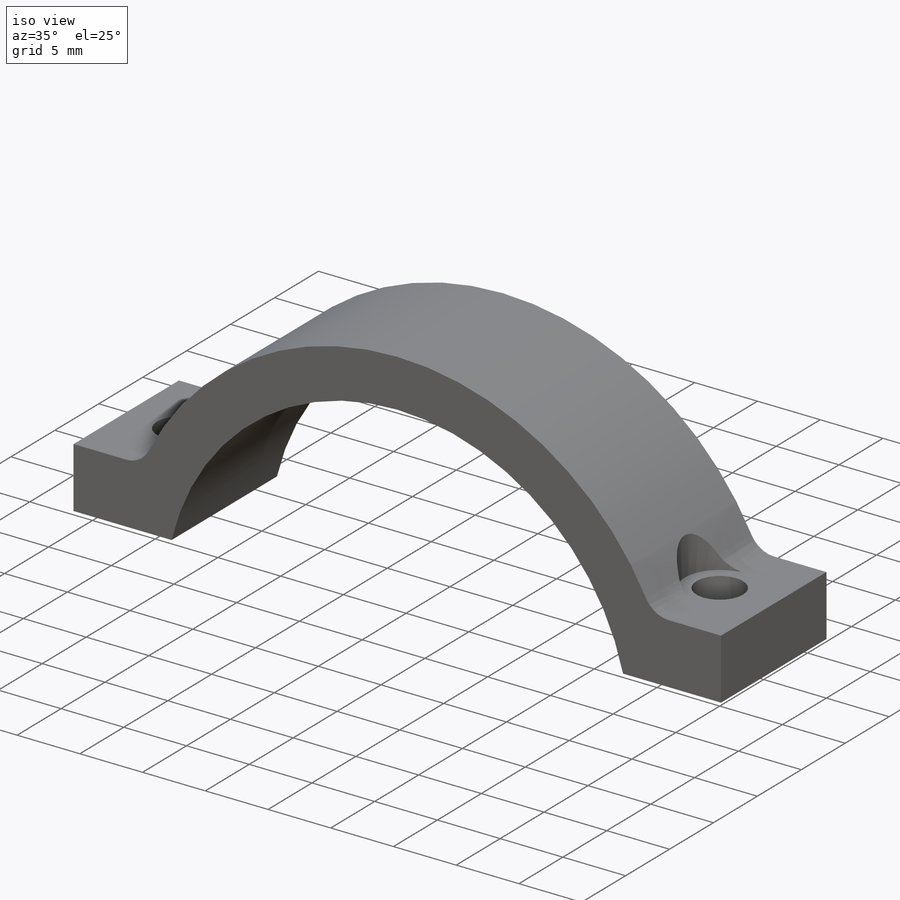
[diagram: iso view]
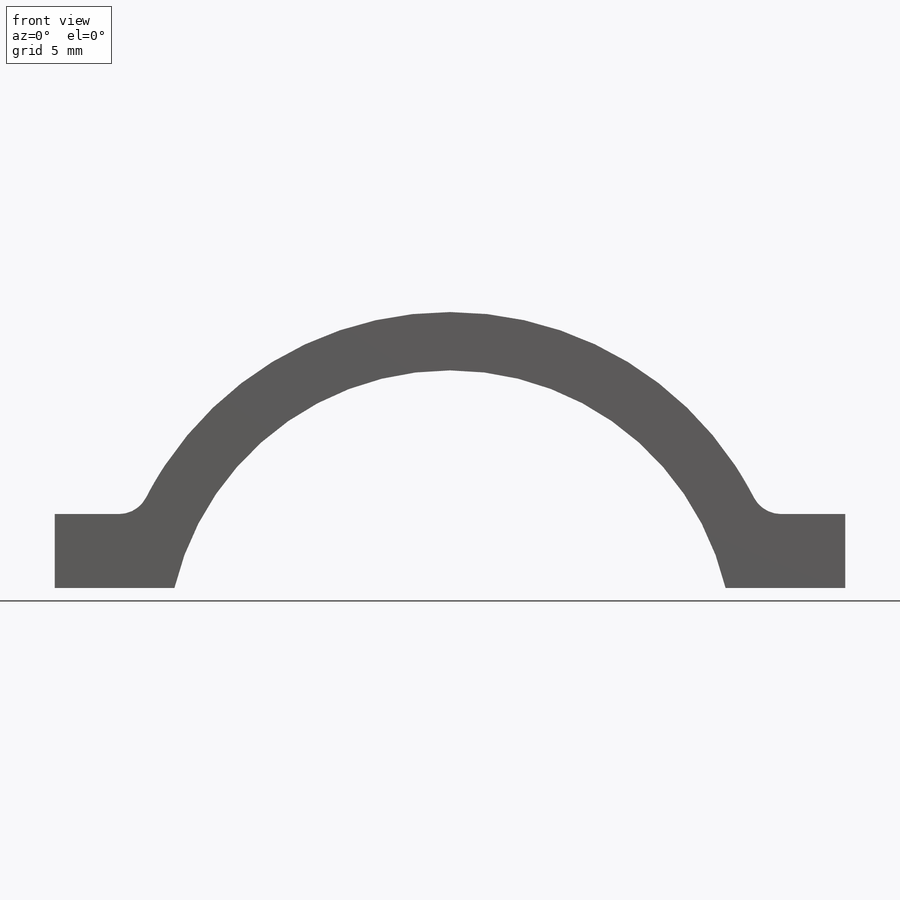
[diagram: front view]
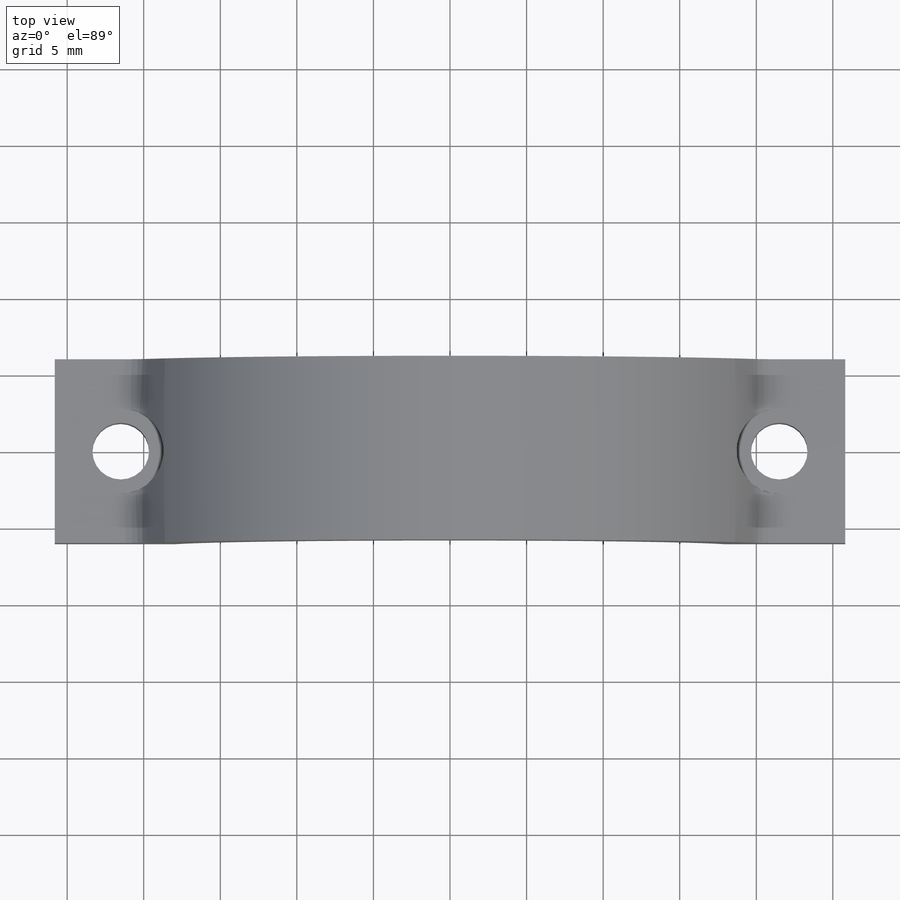
[diagram: top view]
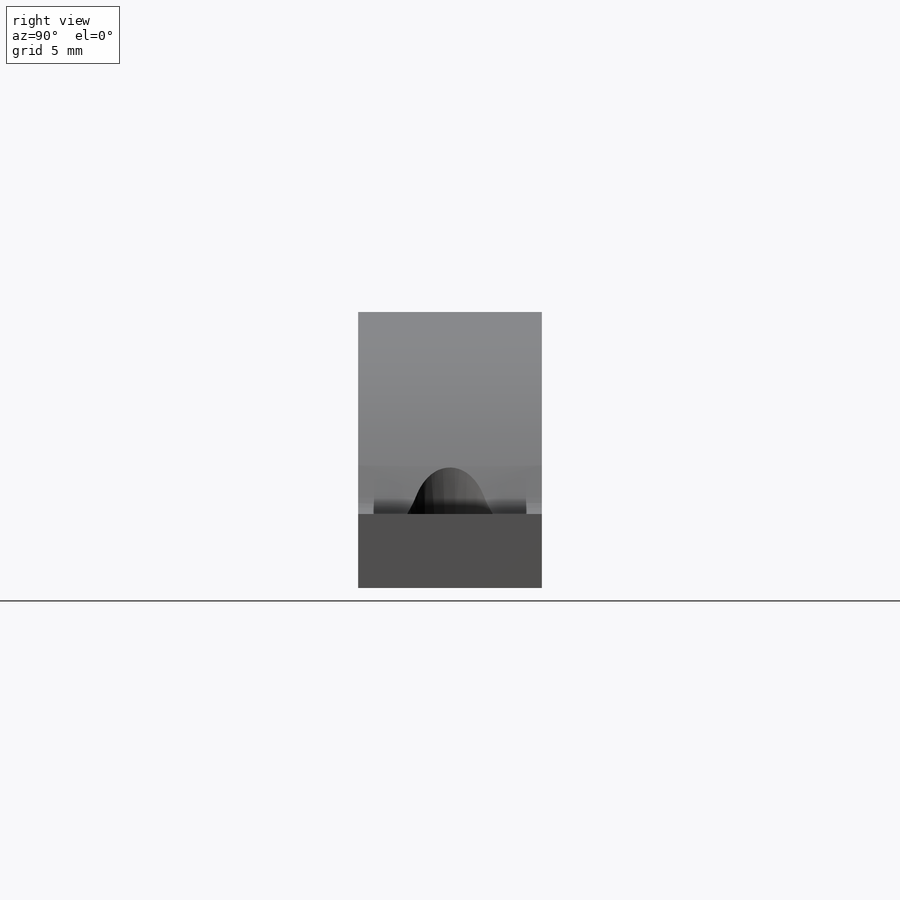
[diagram: right view]
SOLIDWORKS PART (.sldprt)
format: sldprt  version: not decoded by parser v0  size: 186,880 bytes
history: native  units: mm
features: sketch x3, cut_extrude x2, material x1, extrude x1, fillet x1 (+11 scaffold rows collapsed)
feature tree (19):
  scaffold x11  (default folders/planes/origin — collapsed)
  material  "2024 Alloy"
  sketch  "Sketch1"  dims[c1.D3=45.5852mm c1.D1=4.2926mm c1.D2=18.5mm c2.D3=3.81mm c2.D4=51.6128mm c2.D5=4.826mm c2.D2=18.5mm]
  extrude  "Boss-Extrude1"  Depth=6mm
  fillet  "Fillet1"  Radius=2mm
  sketch  "Sketch3"  dims[D2=3.7mm D1=21.5mm]
  cut_extrude  "Cut-Extrude2"  Depth=4.826mm
  sketch  "Sketch4"  dims[D1=5.588mm]
  cut_extrude  "Cut-Extrude3"  Depth=4.826mm
decode coverage: 7 of 7 modeling features carry decoded parameters
note: suppression state not decoded; provenance and decode notes live in map.json
